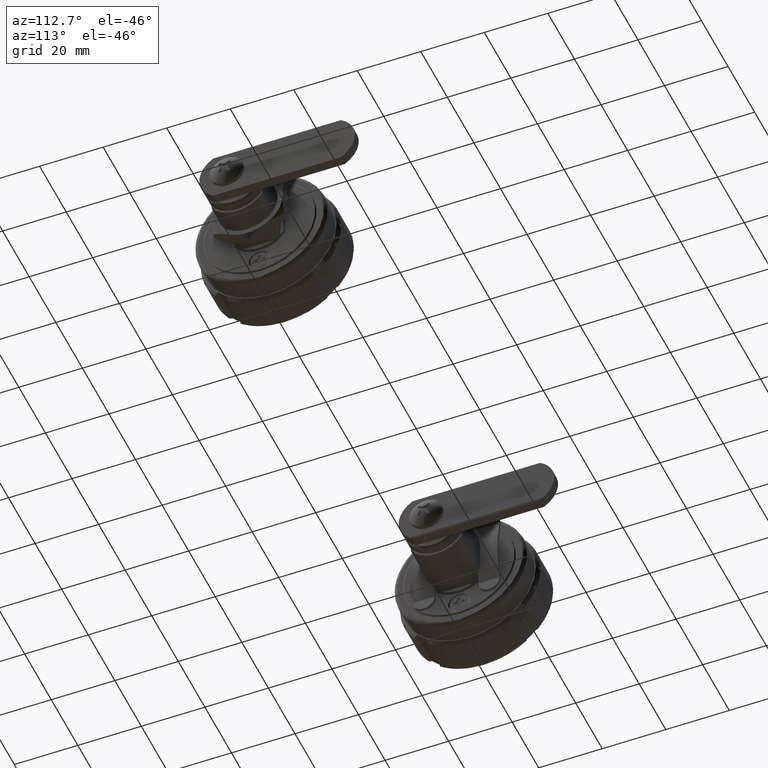
[diagram: clean part render]
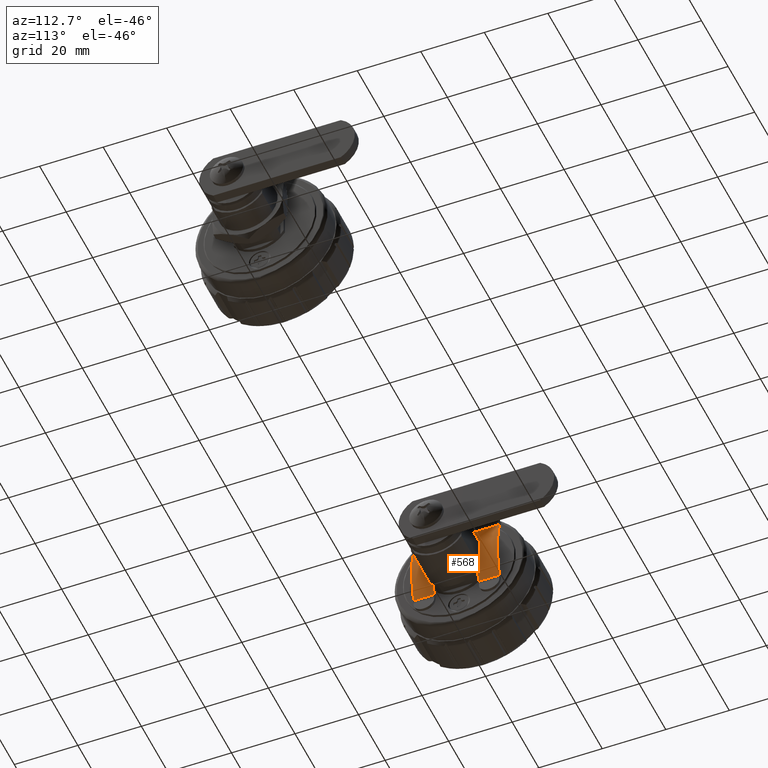
[diagram: same view with one face highlighted and labeled with its STEP entity id]
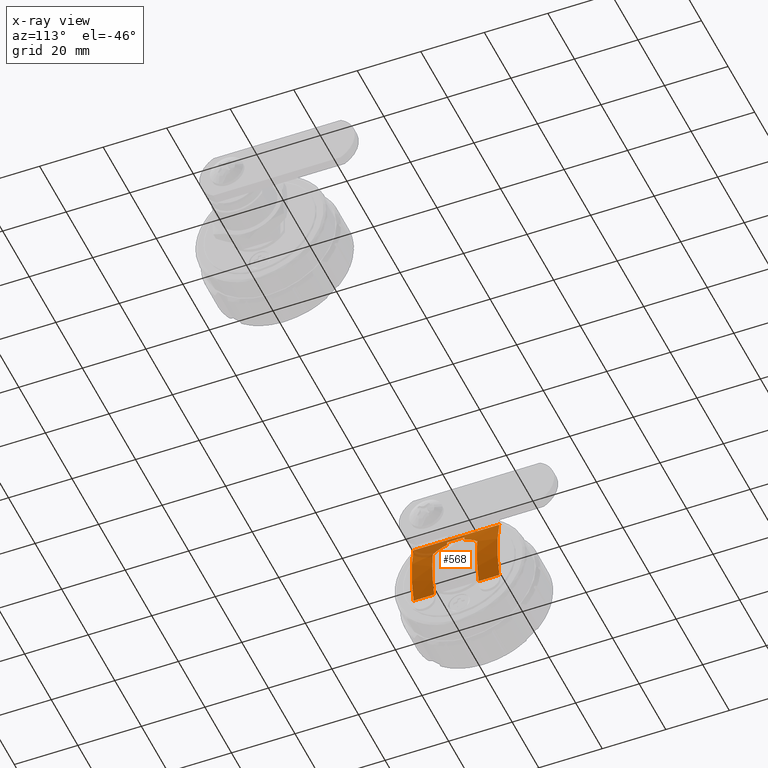
[diagram: x-ray of the same camera — body ghosted, the highlighted face saturated]
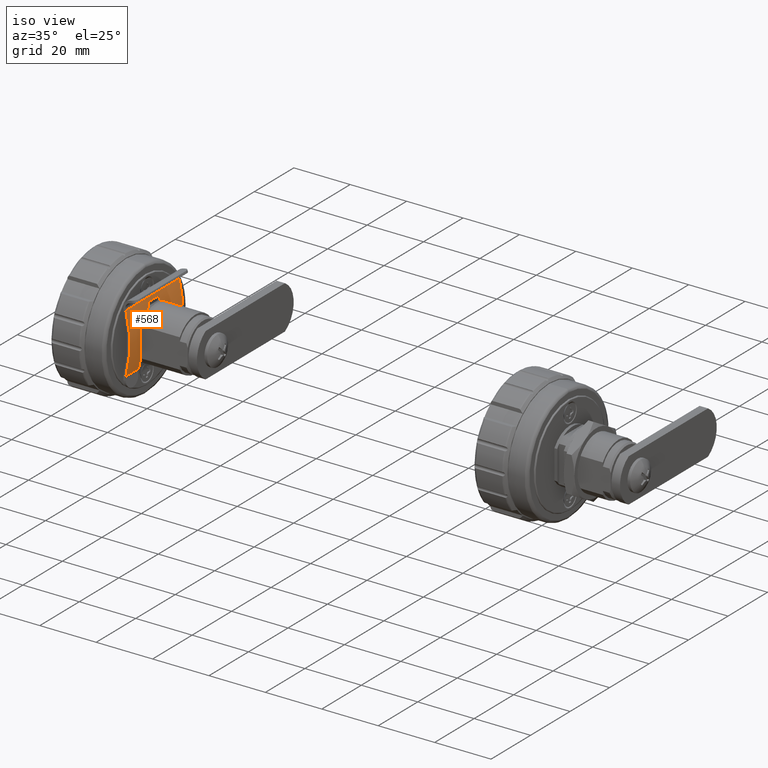
[diagram: same view with one face highlighted and labeled with its STEP entity id]
A machine part, auxiliary view. The second image highlights one B-rep face of the part: STEP entity #568.
The next image is the same camera in x-ray: the body ghosted, the highlighted face saturated — about 14% of this face is hidden behind the body in this view.
A second angle (iso view) of the same face is appended — the face is thin or edge-on in the first view.
In plain terms, the highlighted cylindrical surface (partial cylindrical patch) has radius 40.2635 mm, axis along (0, 1, 0).
Its self-contained STEP definition (entity closure, byte-faithful):
#568=ADVANCED_FACE('',(#3783),#3782,.T.);
#3782=CYLINDRICAL_SURFACE('',#5866,4.02634775890E+01);
#3783=FACE_OUTER_BOUND('',#5867,.T.);
#5863=CARTESIAN_POINT('',(-3.69150435004E+01,9.86500000000E+02,1.28360937740E+00));
#5864=DIRECTION('',(-0.00000000000E+00,1.00000000000E+00,-0.00000000000E+00));
#5865=DIRECTION('',(-0.00000000000E+00,-0.00000000000E+00,1.00000000000E+00));
#5866=AXIS2_PLACEMENT_3D('',#5863,#5864,#5865);
#5867=EDGE_LOOP('',(#7632,#7633,#7634,#7635,#7636,#7637,#7638,#7639,#7640,#7641,#7642,#7643));
#7632=ORIENTED_EDGE('',*,*,#8580,.F.);
#7633=ORIENTED_EDGE('',*,*,#8558,.T.);
#7634=ORIENTED_EDGE('',*,*,#8538,.T.);
#7635=ORIENTED_EDGE('',*,*,#8584,.T.);
#7636=ORIENTED_EDGE('',*,*,#8585,.T.);
#7637=ORIENTED_EDGE('',*,*,#8586,.T.);
#7638=ORIENTED_EDGE('',*,*,#8552,.T.);
#7639=ORIENTED_EDGE('',*,*,#8564,.T.);
#7640=ORIENTED_EDGE('',*,*,#8583,.F.);
#7641=ORIENTED_EDGE('',*,*,#8587,.T.);
#7642=ORIENTED_EDGE('',*,*,#8588,.T.);
#7643=ORIENTED_EDGE('',*,*,#8589,.F.);
#8538=EDGE_CURVE('',#14059,#14052,#14060,.T.);
#8552=EDGE_CURVE('',#14155,#14148,#14156,.T.);
#8558=EDGE_CURVE('',#14196,#14059,#14197,.T.);
#8564=EDGE_CURVE('',#14148,#14231,#14238,.T.);
#8580=EDGE_CURVE('',#14196,#14342,#14343,.T.);
#8583=EDGE_CURVE('',#14355,#14231,#14362,.T.);
#8584=EDGE_CURVE('',#14052,#14368,#14369,.T.);
#8585=EDGE_CURVE('',#14368,#14375,#14376,.T.);
#8586=EDGE_CURVE('',#14375,#14155,#14382,.T.);
#8587=EDGE_CURVE('',#14355,#14388,#14389,.T.);
#8588=EDGE_CURVE('',#14388,#14395,#14396,.T.);
#8589=EDGE_CURVE('',#14342,#14395,#14402,.T.);
#14052=VERTEX_POINT('',#18583);
#14059=VERTEX_POINT('',#18587);
#14060=(BOUNDED_CURVE() B_SPLINE_CURVE(3,(#18588,#18589,#18590,#18591,#18592,#18593,#18594,#18595),.UNSPECIFIED.,.F.,.F.) B_SPLINE_CURVE_WITH_KNOTS((4,2,2,4),(5.57073162715E-18,2.53157937548E-03,3.79736906322E-03,5.06315875096E-03),.UNSPECIFIED.) CURVE() GEOMETRIC_REPRESENTATION_ITEM() RATIONAL_B_SPLINE_CURVE((1.00000000000E+00,1.00000000000E+00,1.00000000000E+00,1.00000000000E+00,1.00000000000E+00,1.00000000000E+00,1.00000000000E+00,1.00000000000E+00)) REPRESENTATION_ITEM('') );
#14148=VERTEX_POINT('',#18653);
#14155=VERTEX_POINT('',#18657);
#14156=(BOUNDED_CURVE() B_SPLINE_CURVE(3,(#18658,#18659,#18660,#18661,#18662,#18663,#18664,#18665),.UNSPECIFIED.,.F.,.F.) B_SPLINE_CURVE_WITH_KNOTS((4,2,2,4),(4.69097583104E-18,2.53130643078E-03,3.79695964617E-03,5.06261286155E-03),.UNSPECIFIED.) CURVE() GEOMETRIC_REPRESENTATION_ITEM() RATIONAL_B_SPLINE_CURVE((1.00000000000E+00,1.00000000000E+00,1.00000000000E+00,1.00000000000E+00,1.00000000000E+00,1.00000000000E+00,1.00000000000E+00,1.00000000000E+00)) REPRESENTATION_ITEM('') );
#14196=VERTEX_POINT('',#18686);
#14197=CIRCLE('',#18690,4.02634775890E+01);
#14231=VERTEX_POINT('',#18708);
#14238=CIRCLE('',#18716,4.02634775890E+01);
#14342=VERTEX_POINT('',#18777);
#14343=LINE('',#18778,#18779);
#14355=VERTEX_POINT('',#18785);
#14362=LINE('',#18790,#18791);
#14368=VERTEX_POINT('',#18793);
#14369=CIRCLE('',#18797,4.02634775890E+01);
#14375=VERTEX_POINT('',#18798);
#14376=LINE('',#18799,#18800);
#14382=CIRCLE('',#18805,4.02634775890E+01);
#14388=VERTEX_POINT('',#18806);
#14389=CIRCLE('',#18810,4.02634775890E+01);
#14395=VERTEX_POINT('',#18811);
#14396=LINE('',#18812,#18813);
#14402=CIRCLE('',#18818,4.02634775890E+01);
#18583=CARTESIAN_POINT('',(2.58377774078E+00,-2.75000000000E+00,9.09326673973E+00));
#18587=CARTESIAN_POINT('',(3.01913027994E+00,-7.00000000000E+00,6.42261628933E+00));
#18588=CARTESIAN_POINT('',(3.01913027994E+00,-7.00000000000E+00,6.42261628933E+00));
#18589=CARTESIAN_POINT('',(2.93833548777E+00,-6.42394651776E+00,7.05045612812E+00));
#18590=CARTESIAN_POINT('',(2.85444277204E+00,-5.77813530105E+00,7.58789590919E+00));
#18591=CARTESIAN_POINT('',(2.73956004889E+00,-4.70646094148E+00,8.26301872064E+00));
#18592=CARTESIAN_POINT('',(2.70293189238E+00,-4.32973967288E+00,8.46663307744E+00));
#18593=CARTESIAN_POINT('',(2.63735862190E+00,-3.55664167788E+00,8.81934358545E+00));
#18594=CARTESIAN_POINT('',(2.60823341981E+00,-3.15899605393E+00,8.96957751115E+00));
#18595=CARTESIAN_POINT('',(2.58377774078E+00,-2.75000000000E+00,9.09326673973E+00));
#18653=CARTESIAN_POINT('',(3.01913027994E+00,7.00000000000E+00,6.42261628933E+00));
#18657=CARTESIAN_POINT('',(2.58377774078E+00,2.75000000000E+00,9.09326673973E+00));
#18658=CARTESIAN_POINT('',(2.58377774078E+00,2.75000000000E+00,9.09326673973E+00));
#18659=CARTESIAN_POINT('',(2.63269576507E+00,3.56810359353E+00,8.84585456690E+00));
#18660=CARTESIAN_POINT('',(2.69979171903E+00,4.33355149287E+00,8.49607672863E+00));
#18661=CARTESIAN_POINT('',(2.81449837035E+00,5.40645416605E+00,7.82294704254E+00));
#18662=CARTESIAN_POINT('',(2.85529833824E+00,5.75290468403E+00,7.57192374127E+00));
#18663=CARTESIAN_POINT('',(2.93734488070E+00,6.40486914473E+00,7.02905347014E+00));
#18664=CARTESIAN_POINT('',(2.97873082304E+00,6.71195856562E+00,6.73655222288E+00));
#18665=CARTESIAN_POINT('',(3.01913027994E+00,7.00000000000E+00,6.42261628933E+00));
#18686=CARTESIAN_POINT('',(1.94648935831E+00,-7.00000000000E+00,-9.24866917148E+00));
#18687=CARTESIAN_POINT('',(-3.69150435004E+01,-7.00000000000E+00,1.28360937740E+00));
#18688=DIRECTION('',(0.00000000000E+00,-1.00000000000E+00,0.00000000000E+00));
#18689=DIRECTION('',(-0.00000000000E+00,-0.00000000000E+00,-1.00000000000E+00));
#18690=AXIS2_PLACEMENT_3D('',#18687,#18688,#18689);
#18708=CARTESIAN_POINT('',(1.94648935831E+00,7.00000000000E+00,-9.24866917148E+00));
#18713=CARTESIAN_POINT('',(-3.69150435004E+01,7.00000000000E+00,1.28360937740E+00));
#18714=DIRECTION('',(-0.00000000000E+00,1.00000000000E+00,0.00000000000E+00));
#18715=DIRECTION('',(-0.00000000000E+00,-0.00000000000E+00,1.00000000000E+00));
#18716=AXIS2_PLACEMENT_3D('',#18713,#18714,#18715);
#18777=CARTESIAN_POINT('',(1.94648935831E+00,-1.35000000000E+01,-9.24866917148E+00));
#18778=CARTESIAN_POINT('',(1.94648935831E+00,-7.00000000000E+00,-9.24866917148E+00));
#18779=VECTOR('',#18780,6.50000000000E+00);
#18780=DIRECTION('',(0.00000000000E+00,-1.00000000000E+00,0.00000000000E+00));
#18785=CARTESIAN_POINT('',(1.94648935831E+00,1.35000000000E+01,-9.24866917148E+00));
#18790=CARTESIAN_POINT('',(1.94648935831E+00,1.35000000000E+01,-9.24866917148E+00));
#18791=VECTOR('',#18792,6.50000000000E+00);
#18792=DIRECTION('',(0.00000000000E+00,-1.00000000000E+00,0.00000000000E+00));
#18793=CARTESIAN_POINT('',(2.27941747881E+00,-2.75000000000E+00,1.05000000000E+01));
#18794=CARTESIAN_POINT('',(-3.69150435004E+01,-2.75000000000E+00,1.28360937740E+00));
#18795=DIRECTION('',(0.00000000000E+00,-1.00000000000E+00,0.00000000000E+00));
#18796=DIRECTION('',(-0.00000000000E+00,-0.00000000000E+00,-1.00000000000E+00));
#18797=AXIS2_PLACEMENT_3D('',#18794,#18795,#18796);
#18798=CARTESIAN_POINT('',(2.27941747881E+00,2.75000000000E+00,1.05000000000E+01));
#18799=CARTESIAN_POINT('',(2.27941747881E+00,-2.75000000000E+00,1.05000000000E+01));
#18800=VECTOR('',#18801,5.50000000000E+00);
#18801=DIRECTION('',(0.00000000000E+00,1.00000000000E+00,0.00000000000E+00));
#18802=CARTESIAN_POINT('',(-3.69150435004E+01,2.75000000000E+00,1.28360937740E+00));
#18803=DIRECTION('',(-0.00000000000E+00,1.00000000000E+00,0.00000000000E+00));
#18804=DIRECTION('',(-0.00000000000E+00,-0.00000000000E+00,1.00000000000E+00));
#18805=AXIS2_PLACEMENT_3D('',#18802,#18803,#18804);
#18806=CARTESIAN_POINT('',(1.94648935831E+00,1.35000000000E+01,1.18158879263E+01));
#18807=CARTESIAN_POINT('',(-3.69150435004E+01,1.35000000000E+01,1.28360937740E+00));
#18808=DIRECTION('',(0.00000000000E+00,-1.00000000000E+00,0.00000000000E+00));
#18809=DIRECTION('',(-0.00000000000E+00,-0.00000000000E+00,-1.00000000000E+00));
#18810=AXIS2_PLACEMENT_3D('',#18807,#18808,#18809);
#18811=CARTESIAN_POINT('',(1.94648935831E+00,-1.35000000000E+01,1.18158879263E+01));
#18812=CARTESIAN_POINT('',(1.94648935831E+00,1.35000000000E+01,1.18158879263E+01));
#18813=VECTOR('',#18814,2.70000000000E+01);
#18814=DIRECTION('',(0.00000000000E+00,-1.00000000000E+00,0.00000000000E+00));
#18815=CARTESIAN_POINT('',(-3.69150435004E+01,-1.35000000000E+01,1.28360937740E+00));
#18816=DIRECTION('',(0.00000000000E+00,-1.00000000000E+00,0.00000000000E+00));
#18817=DIRECTION('',(-0.00000000000E+00,-0.00000000000E+00,-1.00000000000E+00));
#18818=AXIS2_PLACEMENT_3D('',#18815,#18816,#18817);